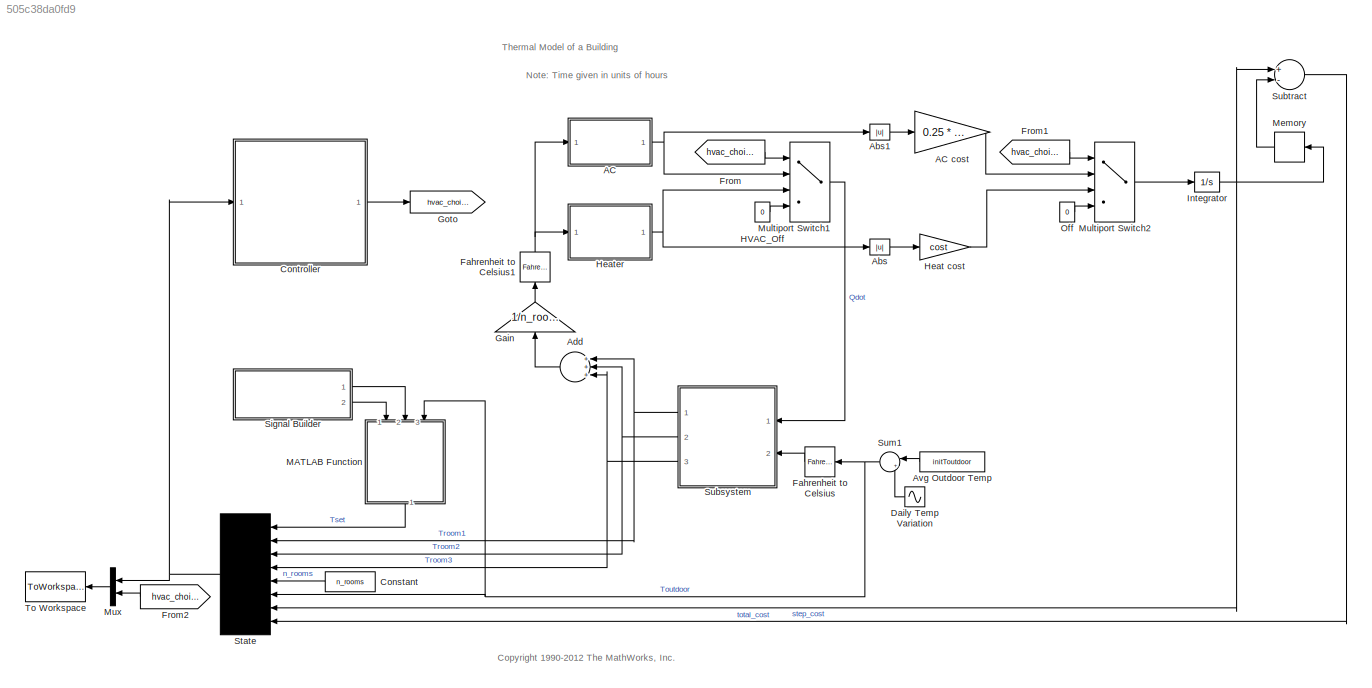
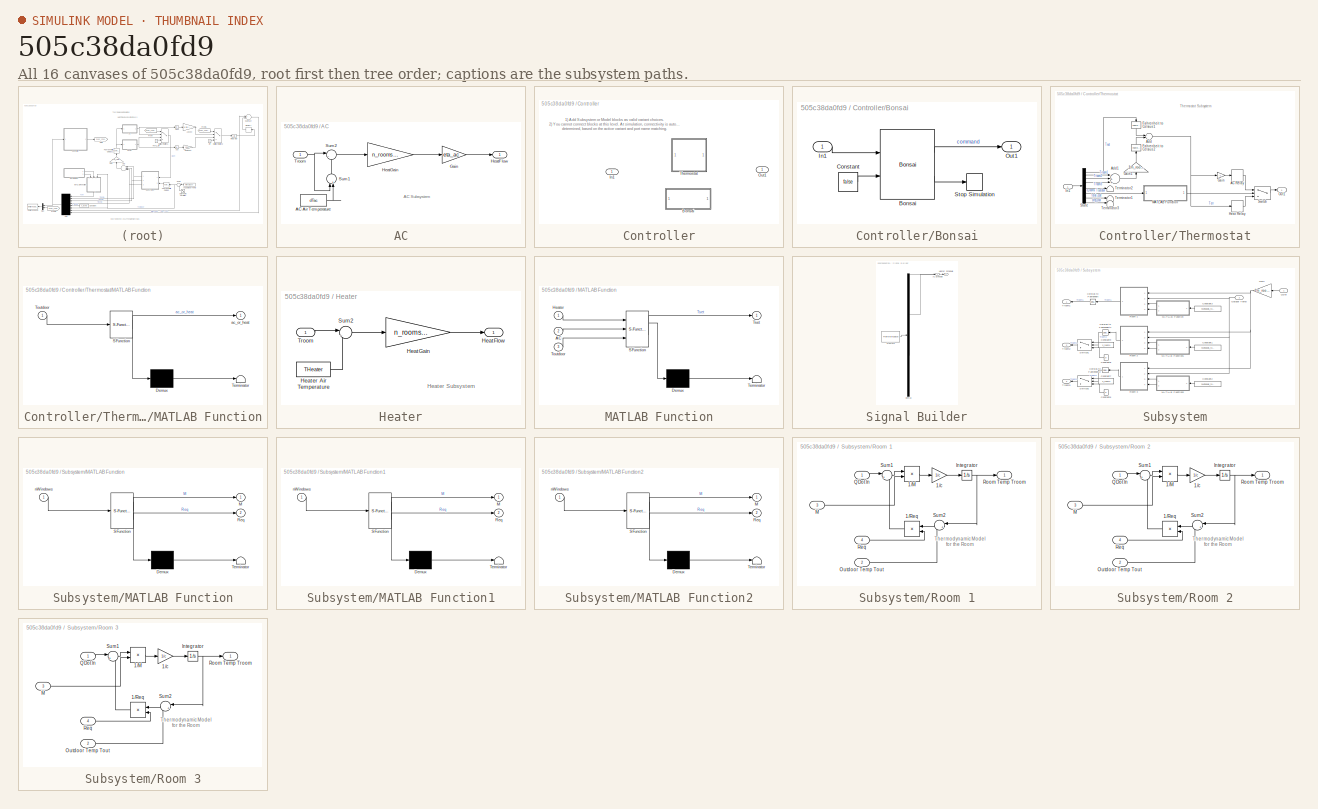
[diagram: thumbnail index - all 16 canvases of the model, root first then tree order]
MODEL slx_505c38da0fd9
KIND model
CONFIG AbsTol = 1e-6
CONFIG EnableMultiTasking = off
CONFIG FixedStep = 1/12
CONFIG MaxStep = auto
CONFIG MinStep = auto
CONFIG RelTol = 1e-3
CONFIG SampleTimeConstraint = Unconstrained
CONFIG Solver = FixedStepAuto
CONFIG SolverName = FixedStepAuto
CONFIG StartTime = 0.0
CONFIG StopTime = 24
BLOCK [SubSystem] AC
  Ports = [1, 1]
  RequestExecContextInheritance = off
BLOCK [Gain] AC cost
  Gain = 0.25 * cost
BLOCK [Constant] AC/AC Air Temperature
  Value = dTac
BLOCK [Gain] AC/Gain
  Gain = eta_ac
  OutDataTypeStr = Inherit: Inherit via internal rule
  ParamDataTypeStr = Inherit: Inherit via internal rule
  SaturateOnIntegerOverflow = off
BLOCK [Outport] AC/HeatFlow
  IconDisplay = Port number
  VectorParamsAs1DForOutWhenUnconnected = off
BLOCK [Gain] AC/HeatGain
  Gain = n_rooms*Mdot*c
  OutDataTypeStr = Inherit: Inherit via internal rule
  ParamDataTypeStr = Inherit: Inherit via internal rule
  SaturateOnIntegerOverflow = off
BLOCK [Sum] AC/Sum1
  IconShape = round
  InputSameDT = off
  Inputs = |+-
  OutDataTypeStr = Inherit: Inherit via internal rule
  Ports = [2, 1]
  SaturateOnIntegerOverflow = off
BLOCK [Sum] AC/Sum2
  IconShape = round
  InputSameDT = off
  Inputs = |-+
  OutDataTypeStr = Inherit: Inherit via internal rule
  Ports = [2, 1]
  SaturateOnIntegerOverflow = off
BLOCK [Inport] AC/Troom
  IconDisplay = Port number
BLOCK [Abs] Abs
  SaturateOnIntegerOverflow = off
BLOCK [Abs] Abs1
  SaturateOnIntegerOverflow = off
BLOCK [Sum] Add
  InputSameDT = off
  Inputs = +++
  OutDataTypeStr = Inherit: Inherit via internal rule
  Ports = [3, 1]
  SaturateOnIntegerOverflow = off
BLOCK [Constant] Avg Outdoor Temp
  Value = initToutdoor
BLOCK [Constant] Constant
  Value = n_rooms
BLOCK [SubSystem] Controller
  LabelModeActiveChoice = Bonsai
  Ports = [1, 1]
  RequestExecContextInheritance = off
  Variant = on
  VariantControlMode = Label
BLOCK [SubSystem] Controller/Bonsai
  Ports = [1, 1]
  RequestExecContextInheritance = off
  VariantControl = Bonsai
BLOCK [Reference] Controller/Bonsai/Bonsai  REF=bonsai_library/Bonsai
  Ports = [2, 2]
  SourceBlock = bonsai_library/Bonsai
  SourceProductName = Bonsai Toolbox
BLOCK [Constant] Controller/Bonsai/Constant
  Value = false
BLOCK [Inport] Controller/Bonsai/In1
  IconDisplay = Port number
BLOCK [Outport] Controller/Bonsai/Out1
  IconDisplay = Port number
BLOCK [Stop] Controller/Bonsai/Stop Simulation
BLOCK [Inport] Controller/In1
  IconDisplay = Port number
BLOCK [Outport] Controller/Out1
  IconDisplay = Port number
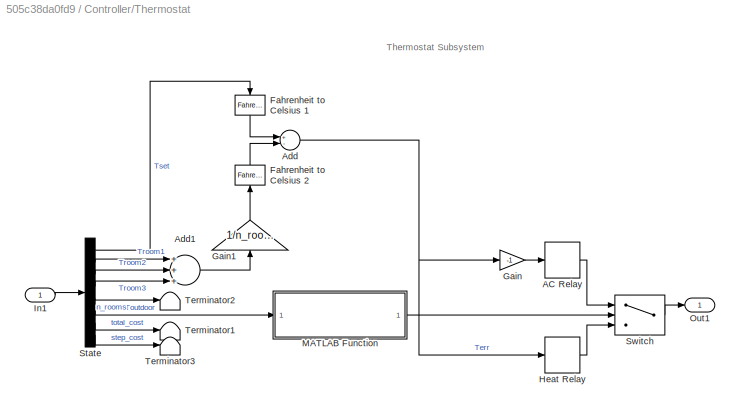
BLOCK [SubSystem] Controller/Thermostat
  Ports = [1, 1]
  RequestExecContextInheritance = off
  VariantControl = Thermostat
BLOCK [Relay] Controller/Thermostat/AC Relay
  OffOutputValue = 3
  OffSwitchValue = -5*(5/9)
  OnSwitchValue = 5*(5/9)
BLOCK [Sum] Controller/Thermostat/Add
  InputSameDT = off
  Inputs = +-
  OutDataTypeStr = Inherit: Inherit via internal rule
  Ports = [2, 1]
  SaturateOnIntegerOverflow = off
BLOCK [Sum] Controller/Thermostat/Add1
  InputSameDT = off
  Inputs = +++
  OutDataTypeStr = Inherit: Inherit via internal rule
  Ports = [3, 1]
  SaturateOnIntegerOverflow = off
BLOCK [Reference] Controller/Thermostat/Fahrenheit to Celsius 1  REF=simulink_extras/Transformations/Fahrenheit
to Celsius
  Ports = [1, 1]
  SourceBlock = simulink_extras/Transformations/Fahrenheit\nto Celsius
  SourceProductName = Simulink Extras
  SourceType = FahrenheitToCelsius
BLOCK [Reference] Controller/Thermostat/Fahrenheit to Celsius 2  REF=simulink_extras/Transformations/Fahrenheit
to Celsius
  Ports = [1, 1]
  SourceBlock = simulink_extras/Transformations/Fahrenheit\nto Celsius
  SourceProductName = Simulink Extras
  SourceType = FahrenheitToCelsius
BLOCK [Gain] Controller/Thermostat/Gain
  Gain = -1
  OutDataTypeStr = Inherit: Inherit via internal rule
  ParamDataTypeStr = Inherit: Inherit via internal rule
  SaturateOnIntegerOverflow = off
BLOCK [Gain] Controller/Thermostat/Gain1
  Gain = 1/n_rooms
  OutDataTypeStr = Inherit: Inherit via internal rule
  ParamDataTypeStr = Inherit: Inherit via internal rule
  SaturateOnIntegerOverflow = off
BLOCK [Relay] Controller/Thermostat/Heat Relay
  OffOutputValue = 3
  OffSwitchValue = -5*(5/9)
  OnOutputValue = 2
  OnSwitchValue = 5*(5/9)
BLOCK [Inport] Controller/Thermostat/In1
  IconDisplay = Port number
BLOCK [SubSystem] Controller/Thermostat/MATLAB Function
  ErrorFcn = Stateflow.Translate.translate
  PermitHierarchicalResolution = ExplicitOnly
  Ports = [1, 1]
  RequestExecContextInheritance = off
  SFBlockType = MATLAB Function
  TreatAsAtomicUnit = on
BLOCK [Demux] Controller/Thermostat/MATLAB Function/ Demux 
  DisplayOption = bar
  Outputs = 1
  Ports = [1, 1]
BLOCK [S-Function] Controller/Thermostat/MATLAB Function/ SFunction 
  EnableBusSupport = on
  FunctionName = sf_sfun
  PortCounts = [1 2]
  Ports = [1, 2]
  SFcnIsStateOwnerBlock = off
  SFunctionDeploymentMode = off
  Tag = Stateflow S-Function 2
BLOCK [Terminator] Controller/Thermostat/MATLAB Function/ Terminator 
BLOCK [Inport] Controller/Thermostat/MATLAB Function/Toutdoor
  IconDisplay = Port number
BLOCK [Outport] Controller/Thermostat/MATLAB Function/ac_or_heat
  IconDisplay = Port number
BLOCK [Outport] Controller/Thermostat/Out1
  IconDisplay = Port number
BLOCK [Demux] Controller/Thermostat/State
  DisplayOption = bar
  Outputs = 8
  Ports = [1, 8]
BLOCK [Switch] Controller/Thermostat/Switch
  Criteria = u2 > Threshold
  InputSameDT = off
  SaturateOnIntegerOverflow = off
BLOCK [Terminator] Controller/Thermostat/Terminator1
BLOCK [Terminator] Controller/Thermostat/Terminator2
BLOCK [Terminator] Controller/Thermostat/Terminator3
BLOCK [Sin] Daily Temp Variation
  Amplitude = 15
  Frequency = 2*pi/24
  Ports = [0, 1]
  SampleTime = 0
BLOCK [Reference] Fahrenheit to Celsius  REF=simulink_extras/Transformations/Fahrenheit
to Celsius
  Ports = [1, 1]
  SourceBlock = simulink_extras/Transformations/Fahrenheit\nto Celsius
  SourceProductName = Simulink Extras
  SourceType = FahrenheitToCelsius
BLOCK [Reference] Fahrenheit to Celsius1  REF=simulink_extras/Transformations/Fahrenheit
to Celsius
  Ports = [1, 1]
  SourceBlock = simulink_extras/Transformations/Fahrenheit\nto Celsius
  SourceProductBaseCode = SL
  SourceType = FahrenheitToCelsius
BLOCK [From] From
  GotoTag = hvac_choice
BLOCK [From] From1
  GotoTag = hvac_choice
BLOCK [From] From2
  GotoTag = hvac_choice
BLOCK [Gain] Gain
  Gain = 1/n_rooms
  OutDataTypeStr = Inherit: Inherit via internal rule
  ParamDataTypeStr = Inherit: Inherit via internal rule
  SaturateOnIntegerOverflow = off
BLOCK [Goto] Goto
  GotoTag = hvac_choice
BLOCK [Constant] HVAC_Off
  Value = 0
BLOCK [Gain] Heat cost 
  Gain = cost
BLOCK [SubSystem] Heater
  Ports = [1, 1]
  RequestExecContextInheritance = off
BLOCK [Outport] Heater/HeatFlow
  IconDisplay = Port number
  VectorParamsAs1DForOutWhenUnconnected = off
BLOCK [Gain] Heater/HeatGain
  Gain = n_rooms*Mdot*c
  OutDataTypeStr = Inherit: Inherit via internal rule
  ParamDataTypeStr = Inherit: Inherit via internal rule
  SaturateOnIntegerOverflow = off
BLOCK [Constant] Heater/Heater Air Temperature
  Value = THeater
BLOCK [Sum] Heater/Sum2
  IconShape = round
  InputSameDT = off
  Inputs = |-+
  OutDataTypeStr = Inherit: Inherit via internal rule
  Ports = [2, 1]
  SaturateOnIntegerOverflow = off
BLOCK [Inport] Heater/Troom
  IconDisplay = Port number
BLOCK [Integrator] Integrator
  Ports = [1, 1]
BLOCK [SubSystem] MATLAB Function
  ErrorFcn = Stateflow.Translate.translate
  PermitHierarchicalResolution = ExplicitOnly
  Ports = [3, 1]
  RequestExecContextInheritance = off
  SFBlockType = MATLAB Function
  TreatAsAtomicUnit = on
BLOCK [Demux] MATLAB Function/ Demux 
  DisplayOption = bar
  Outputs = 1
  Ports = [1, 1]
BLOCK [S-Function] MATLAB Function/ SFunction 
  EnableBusSupport = on
  FunctionName = sf_sfun
  PortCounts = [3 2]
  Ports = [3, 2]
  SFcnIsStateOwnerBlock = off
  SFunctionDeploymentMode = off
  Tag = Stateflow S-Function 1
BLOCK [Terminator] MATLAB Function/ Terminator 
BLOCK [Inport] MATLAB Function/AC
  IconDisplay = Port number
  Port = 2
BLOCK [Inport] MATLAB Function/Heater
  IconDisplay = Port number
BLOCK [Inport] MATLAB Function/Toutdoor
  IconDisplay = Port number
  Port = 3
BLOCK [Outport] MATLAB Function/Tset
  IconDisplay = Port number
BLOCK [Memory] Memory
BLOCK [MultiPortSwitch] Multiport Switch1
  DiagnosticForDefault = None
  InputSameDT = off
  Ports = [4, 1]
  SaturateOnIntegerOverflow = off
BLOCK [MultiPortSwitch] Multiport Switch2
  DiagnosticForDefault = None
  InputSameDT = off
  Ports = [4, 1]
  SaturateOnIntegerOverflow = off
BLOCK [Mux] Mux
  DisplayOption = bar
  Inputs = 2
  Ports = [2, 1]
BLOCK [Constant] Off
  Value = 0
BLOCK [SubSystem] Signal Builder
  ClipboardFcn = sigbuilder_block('clipboard');
  CloseFcn = sigbuilder_block('close');
  ContinueFcn = sigbuilder_block('continue');
  CopyFcn = sigbuilder_block('copy');
  DeleteFcn = sigbuilder_block('delete');
  LoadFcn = sigbuilder_block('load');
  MaskHideContents = on
  ModelCloseFcn = sigbuilder_block('modelClose');
  NameChangeFcn = sigbuilder_block('namechange');
  OpenFcn = sigbuilder_block('open',[437.6 199.2 550.4 400 ]);
  PauseFcn = sigbuilder_block('pause');
  Ports = [0, 2]
  PreSaveFcn = sigbuilder_block('preSave');
  RequestExecContextInheritance = off
  StartFcn = sigbuilder_block('start');
  StopFcn = sigbuilder_block('stop');
  Tag = STV Subsys
BLOCK [Outport] Signal Builder/AC Schedule
  IconDisplay = Port number
  Tag = STV Outport
BLOCK [Demux] Signal Builder/Demux
  Outputs = 2
  Ports = [1, 2]
  Tag = STV Demux
BLOCK [FromWorkspace] Signal Builder/FromWs
  SampleTime = 0
  Tag = STV FromWs
  VariableName = tuvar
  ZeroCross = on
BLOCK [Outport] Signal Builder/Heater Schedule
  IconDisplay = Port number
  Port = 2
  Tag = STV Outport
BLOCK [Mux] State
  DisplayOption = signals
  Inputs = 8
  Ports = [8, 1]
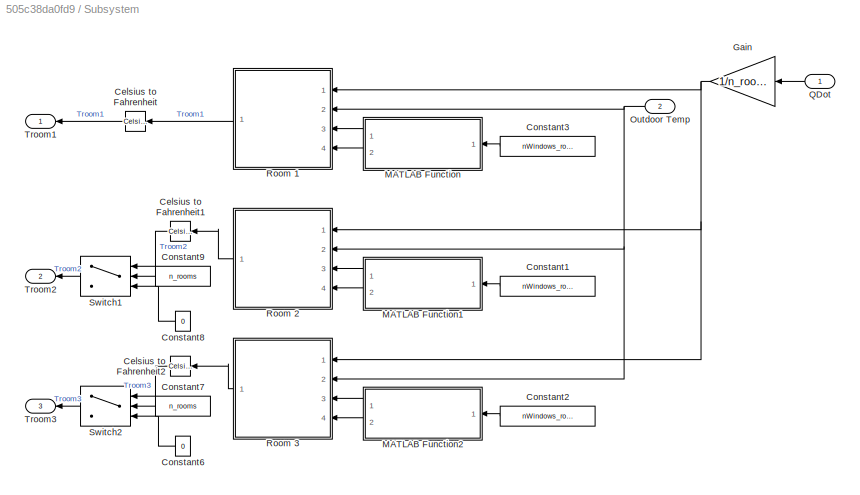
BLOCK [SubSystem] Subsystem
  Ports = [2, 3]
  RequestExecContextInheritance = off
BLOCK [Reference] Subsystem/Celsius to Fahrenheit  REF=simulink_extras/Transformations/Celsius to
Fahrenheit
  Ports = [1, 1]
  SourceBlock = simulink_extras/Transformations/Celsius to\nFahrenheit
  SourceProductName = Simulink Extras
  SourceType = CelsiusToFahrenheit
BLOCK [Reference] Subsystem/Celsius to Fahrenheit1  REF=simulink_extras/Transformations/Celsius to
Fahrenheit
  Ports = [1, 1]
  SourceBlock = simulink_extras/Transformations/Celsius to\nFahrenheit
  SourceProductName = Simulink Extras
  SourceType = CelsiusToFahrenheit
BLOCK [Reference] Subsystem/Celsius to Fahrenheit2  REF=simulink_extras/Transformations/Celsius to
Fahrenheit
  Ports = [1, 1]
  SourceBlock = simulink_extras/Transformations/Celsius to\nFahrenheit
  SourceProductName = Simulink Extras
  SourceType = CelsiusToFahrenheit
BLOCK [Constant] Subsystem/Constant1
  Value = nWindows_room2
  VectorParams1D = off
BLOCK [Constant] Subsystem/Constant2
  Value = nWindows_room3
  VectorParams1D = off
BLOCK [Constant] Subsystem/Constant3
  Value = nWindows_room1
  VectorParams1D = off
BLOCK [Constant] Subsystem/Constant6
  Value = 0
BLOCK [Constant] Subsystem/Constant7
  Value = n_rooms
BLOCK [Constant] Subsystem/Constant8
  Value = 0
BLOCK [Constant] Subsystem/Constant9
  Value = n_rooms
BLOCK [Gain] Subsystem/Gain
  Gain = 1/n_rooms
  OutDataTypeStr = Inherit: Inherit via internal rule
  ParamDataTypeStr = Inherit: Inherit via internal rule
  SaturateOnIntegerOverflow = off
BLOCK [SubSystem] Subsystem/MATLAB Function
  ErrorFcn = Stateflow.Translate.translate
  PermitHierarchicalResolution = ExplicitOnly
  Ports = [1, 2]
  RequestExecContextInheritance = off
  SFBlockType = MATLAB Function
  TreatAsAtomicUnit = on
BLOCK [Demux] Subsystem/MATLAB Function/ Demux 
  DisplayOption = bar
  Outputs = 1
  Ports = [1, 1]
BLOCK [S-Function] Subsystem/MATLAB Function/ SFunction 
  EnableBusSupport = on
  FunctionName = sf_sfun
  PortCounts = [1 3]
  Ports = [1, 3]
  SFcnIsStateOwnerBlock = off
  SFunctionDeploymentMode = off
  Tag = Stateflow S-Function 3
BLOCK [Terminator] Subsystem/MATLAB Function/ Terminator 
BLOCK [Outport] Subsystem/MATLAB Function/M
  IconDisplay = Port number
BLOCK [Outport] Subsystem/MATLAB Function/Req
  IconDisplay = Port number
  Port = 2
BLOCK [Inport] Subsystem/MATLAB Function/nWindows
  IconDisplay = Port number
BLOCK [SubSystem] Subsystem/MATLAB Function1
  ErrorFcn = Stateflow.Translate.translate
  PermitHierarchicalResolution = ExplicitOnly
  Ports = [1, 2]
  RequestExecContextInheritance = off
  SFBlockType = MATLAB Function
  TreatAsAtomicUnit = on
BLOCK [Demux] Subsystem/MATLAB Function1/ Demux 
  DisplayOption = bar
  Outputs = 1
  Ports = [1, 1]
BLOCK [S-Function] Subsystem/MATLAB Function1/ SFunction 
  EnableBusSupport = on
  FunctionName = sf_sfun
  PortCounts = [1 3]
  Ports = [1, 3]
  SFcnIsStateOwnerBlock = off
  SFunctionDeploymentMode = off
  Tag = Stateflow S-Function 4
BLOCK [Terminator] Subsystem/MATLAB Function1/ Terminator 
BLOCK [Outport] Subsystem/MATLAB Function1/M
  IconDisplay = Port number
BLOCK [Outport] Subsystem/MATLAB Function1/Req
  IconDisplay = Port number
  Port = 2
BLOCK [Inport] Subsystem/MATLAB Function1/nWindows
  IconDisplay = Port number
BLOCK [SubSystem] Subsystem/MATLAB Function2
  ErrorFcn = Stateflow.Translate.translate
  PermitHierarchicalResolution = ExplicitOnly
  Ports = [1, 2]
  RequestExecContextInheritance = off
  SFBlockType = MATLAB Function
  TreatAsAtomicUnit = on
BLOCK [Demux] Subsystem/MATLAB Function2/ Demux 
  DisplayOption = bar
  Outputs = 1
  Ports = [1, 1]
BLOCK [S-Function] Subsystem/MATLAB Function2/ SFunction 
  EnableBusSupport = on
  FunctionName = sf_sfun
  PortCounts = [1 3]
  Ports = [1, 3]
  SFcnIsStateOwnerBlock = off
  SFunctionDeploymentMode = off
  Tag = Stateflow S-Function 5
BLOCK [Terminator] Subsystem/MATLAB Function2/ Terminator 
BLOCK [Outport] Subsystem/MATLAB Function2/M
  IconDisplay = Port number
BLOCK [Outport] Subsystem/MATLAB Function2/Req
  IconDisplay = Port number
  Port = 2
BLOCK [Inport] Subsystem/MATLAB Function2/nWindows
  IconDisplay = Port number
BLOCK [Inport] Subsystem/Outdoor Temp
  IconDisplay = Port number
  Port = 2
BLOCK [Inport] Subsystem/QDot
  IconDisplay = Port number
BLOCK [SubSystem] Subsystem/Room 1
  Ports = [4, 1]
  RequestExecContextInheritance = off
BLOCK [Product] Subsystem/Room 1/1//M
  InputSameDT = off
  Inputs = */
  OutDataTypeStr = Inherit: Inherit via internal rule
  Ports = [2, 1]
  RndMeth = Floor
  SaturateOnIntegerOverflow = off
BLOCK [Product] Subsystem/Room 1/1//Req
  InputSameDT = off
  Inputs = */
  OutDataTypeStr = Inherit: Inherit via internal rule
  Ports = [2, 1]
  RndMeth = Floor
  SaturateOnIntegerOverflow = off
BLOCK [Gain] Subsystem/Room 1/1//c
  Gain = 1/c
BLOCK [Integrator] Subsystem/Room 1/Integrator
  InitialCondition = TinIC
  Ports = [1, 1]
BLOCK [Inport] Subsystem/Room 1/M
  IconDisplay = Port number
  Port = 3
BLOCK [Inport] Subsystem/Room 1/Outdoor Temp Tout
  IconDisplay = Port number
  Port = 2
BLOCK [Inport] Subsystem/Room 1/QDot In
  IconDisplay = Port number
BLOCK [Inport] Subsystem/Room 1/Req
  IconDisplay = Port number
  Port = 4
BLOCK [Outport] Subsystem/Room 1/Room Temp Troom
  IconDisplay = Port number
  InitialOutput = 0
  VectorParamsAs1DForOutWhenUnconnected = off
BLOCK [Sum] Subsystem/Room 1/Sum1
  IconShape = round
  Inputs = |+-
  Ports = [2, 1]
BLOCK [Sum] Subsystem/Room 1/Sum2
  IconShape = round
  Inputs = |+-
  Ports = [2, 1]
BLOCK [SubSystem] Subsystem/Room 2
  Ports = [4, 1]
  RequestExecContextInheritance = off
BLOCK [Product] Subsystem/Room 2/1//M
  InputSameDT = off
  Inputs = */
  OutDataTypeStr = Inherit: Inherit via internal rule
  Ports = [2, 1]
  RndMeth = Floor
  SaturateOnIntegerOverflow = off
BLOCK [Product] Subsystem/Room 2/1//Req
  InputSameDT = off
  Inputs = */
  OutDataTypeStr = Inherit: Inherit via internal rule
  Ports = [2, 1]
  RndMeth = Floor
  SaturateOnIntegerOverflow = off
BLOCK [Gain] Subsystem/Room 2/1//c
  Gain = 1/c
BLOCK [Integrator] Subsystem/Room 2/Integrator
  InitialCondition = TinIC
  Ports = [1, 1]
BLOCK [Inport] Subsystem/Room 2/M
  IconDisplay = Port number
  Port = 3
BLOCK [Inport] Subsystem/Room 2/Outdoor Temp Tout
  IconDisplay = Port number
  Port = 2
BLOCK [Inport] Subsystem/Room 2/QDot In
  IconDisplay = Port number
BLOCK [Inport] Subsystem/Room 2/Req
  IconDisplay = Port number
  Port = 4
BLOCK [Outport] Subsystem/Room 2/Room Temp Troom
  IconDisplay = Port number
  InitialOutput = 0
  VectorParamsAs1DForOutWhenUnconnected = off
BLOCK [Sum] Subsystem/Room 2/Sum1
  IconShape = round
  Inputs = |+-
  Ports = [2, 1]
BLOCK [Sum] Subsystem/Room 2/Sum2
  IconShape = round
  Inputs = |+-
  Ports = [2, 1]
BLOCK [SubSystem] Subsystem/Room 3
  Ports = [4, 1]
  RequestExecContextInheritance = off
BLOCK [Product] Subsystem/Room 3/1//M
  InputSameDT = off
  Inputs = */
  OutDataTypeStr = Inherit: Inherit via internal rule
  Ports = [2, 1]
  RndMeth = Floor
  SaturateOnIntegerOverflow = off
BLOCK [Product] Subsystem/Room 3/1//Req
  InputSameDT = off
  Inputs = */
  OutDataTypeStr = Inherit: Inherit via internal rule
  Ports = [2, 1]
  RndMeth = Floor
  SaturateOnIntegerOverflow = off
BLOCK [Gain] Subsystem/Room 3/1//c
  Gain = 1/c
BLOCK [Integrator] Subsystem/Room 3/Integrator
  InitialCondition = TinIC
  Ports = [1, 1]
BLOCK [Inport] Subsystem/Room 3/M
  IconDisplay = Port number
  Port = 3
BLOCK [Inport] Subsystem/Room 3/Outdoor Temp Tout
  IconDisplay = Port number
  Port = 2
BLOCK [Inport] Subsystem/Room 3/QDot In
  IconDisplay = Port number
BLOCK [Inport] Subsystem/Room 3/Req
  IconDisplay = Port number
  Port = 4
BLOCK [Outport] Subsystem/Room 3/Room Temp Troom
  IconDisplay = Port number
  InitialOutput = 0
  VectorParamsAs1DForOutWhenUnconnected = off
BLOCK [Sum] Subsystem/Room 3/Sum1
  IconShape = round
  Inputs = |+-
  Ports = [2, 1]
BLOCK [Sum] Subsystem/Room 3/Sum2
  IconShape = round
  Inputs = |+-
  Ports = [2, 1]
BLOCK [Switch] Subsystem/Switch1
  InputSameDT = off
  SaturateOnIntegerOverflow = off
  Threshold = 2
BLOCK [Switch] Subsystem/Switch2
  InputSameDT = off
  SaturateOnIntegerOverflow = off
  Threshold = 3
BLOCK [Outport] Subsystem/Troom1
  IconDisplay = Port number
BLOCK [Outport] Subsystem/Troom2
  IconDisplay = Port number
  Port = 2
BLOCK [Outport] Subsystem/Troom3
  IconDisplay = Port number
  Port = 3
BLOCK [Sum] Subtract
  InputSameDT = off
  Inputs = +-
  OutDataTypeStr = Inherit: Inherit via internal rule
  Ports = [2, 1]
  SaturateOnIntegerOverflow = off
BLOCK [Sum] Sum1
  IconShape = round
  Inputs = |++
  Ports = [2, 1]
BLOCK [ToWorkspace] To Workspace
  FixptAsFi = on
  MaxDataPoints = inf
  Ports = [1]
  SampleTime = -1
  VariableName = simout
ANNOTATION (root): <copyright redacted>
ANNOTATION (root): Note: Time given in units of hours
ANNOTATION (root): Thermal Model of a Building
ANNOTATION AC: AC Subsystem
ANNOTATION Controller: 1) Add Subsystem or Model blocks as valid variant choices. 2) You cannot connect blocks at this level. At simulation, connectivity is automatically determined, based on the active variant and port name matching.
ANNOTATION Controller/Thermostat: Thermostat Subsystem
ANNOTATION Heater: Heater Subsystem
ANNOTATION Subsystem/Room 1: Thermodynamic Model for the Room
ANNOTATION Subsystem/Room 2: Thermodynamic Model for the Room
ANNOTATION Subsystem/Room 3: Thermodynamic Model for the Room
LINE AC cost:1 -> Multiport Switch2:2
LINE AC/AC Air Temperature:1 -> AC/Sum1:2
LINE AC/Gain:1 -> AC/HeatFlow:1
LINE AC/HeatGain:1 -> AC/Gain:1
LINE AC/Sum1:1 -> AC/Sum2:2
LINE AC/Sum2:1 -> AC/HeatGain:1
NET AC/Troom:1 -> AC/Sum1:1, AC/Sum2:1
NET AC:1 -> Abs1:1, Multiport Switch1:2
LINE Abs1:1 -> AC cost:1
LINE Abs:1 -> Heat cost :1
LINE Add:1 -> Gain:1
LINE Avg Outdoor Temp:1 -> Sum1:1
LINE Constant:1 -> State:5
LINE Controller/Bonsai/Bonsai:1 -> Controller/Bonsai/Out1:1
LINE Controller/Bonsai/Bonsai:2 -> Controller/Bonsai/Stop Simulation:1
LINE Controller/Bonsai/Constant:1 -> Controller/Bonsai/Bonsai:2
LINE Controller/Bonsai/In1:1 -> Controller/Bonsai/Bonsai:1
LINE Controller/Thermostat/AC Relay:1 -> Controller/Thermostat/Switch:1
LINE Controller/Thermostat/Add1:1 -> Controller/Thermostat/Gain1:1
NET Controller/Thermostat/Add:1 -> Controller/Thermostat/Gain:1, Controller/Thermostat/Heat Relay:1
LINE Controller/Thermostat/Fahrenheit to Celsius 1:1 -> Controller/Thermostat/Add:1
LINE Controller/Thermostat/Fahrenheit to Celsius 2:1 -> Controller/Thermostat/Add:2
LINE Controller/Thermostat/Gain1:1 -> Controller/Thermostat/Fahrenheit to Celsius 2:1
LINE Controller/Thermostat/Gain:1 -> Controller/Thermostat/AC Relay:1
LINE Controller/Thermostat/Heat Relay:1 -> Controller/Thermostat/Switch:3
LINE Controller/Thermostat/In1:1 -> Controller/Thermostat/State:1
LINE Controller/Thermostat/MATLAB Function:1 -> Controller/Thermostat/Switch:2
LINE Controller/Thermostat/State:1 -> Controller/Thermostat/Fahrenheit to Celsius 1:1
LINE Controller/Thermostat/State:2 -> Controller/Thermostat/Add1:1
LINE Controller/Thermostat/State:3 -> Controller/Thermostat/Add1:2
LINE Controller/Thermostat/State:4 -> Controller/Thermostat/Add1:3
LINE Controller/Thermostat/State:5 -> Controller/Thermostat/Terminator2:1
LINE Controller/Thermostat/State:6 -> Controller/Thermostat/MATLAB Function:1
LINE Controller/Thermostat/State:7 -> Controller/Thermostat/Terminator1:1
LINE Controller/Thermostat/State:8 -> Controller/Thermostat/Terminator3:1
LINE Controller/Thermostat/Switch:1 -> Controller/Thermostat/Out1:1
LINE Controller:1 -> Goto:1
LINE Daily Temp Variation:1 -> Sum1:2
NET Fahrenheit to Celsius1:1 -> AC:1, Heater:1
LINE Fahrenheit to Celsius:1 -> Subsystem:2
LINE From1:1 -> Multiport Switch2:1
LINE From2:1 -> Mux:2
LINE From:1 -> Multiport Switch1:1
LINE Gain:1 -> Fahrenheit to Celsius1:1
LINE HVAC_Off:1 -> Multiport Switch1:4
LINE Heat cost :1 -> Multiport Switch2:3
LINE Heater/HeatGain:1 -> Heater/HeatFlow:1
LINE Heater/Heater Air Temperature:1 -> Heater/Sum2:2
LINE Heater/Sum2:1 -> Heater/HeatGain:1
LINE Heater/Troom:1 -> Heater/Sum2:1
NET Heater:1 -> Abs:1, Multiport Switch1:3
NET Integrator:1 -> Memory:1, State:7, Subtract:1
LINE MATLAB Function:1 -> State:1
LINE Memory:1 -> Subtract:2
LINE Multiport Switch1:1 -> Subsystem:1
LINE Multiport Switch2:1 -> Integrator:1
LINE Mux:1 -> To Workspace:1
LINE Off:1 -> Multiport Switch2:4
LINE Signal Builder:1 -> MATLAB Function:2
LINE Signal Builder:2 -> MATLAB Function:1
NET State:1 -> Controller:1, Mux:1
LINE Subsystem/Celsius to Fahrenheit1:1 -> Subsystem/Switch1:1
LINE Subsystem/Celsius to Fahrenheit2:1 -> Subsystem/Switch2:1
LINE Subsystem/Celsius to Fahrenheit:1 -> Subsystem/Troom1:1
LINE Subsystem/Constant1:1 -> Subsystem/MATLAB Function1:1
LINE Subsystem/Constant2:1 -> Subsystem/MATLAB Function2:1
LINE Subsystem/Constant3:1 -> Subsystem/MATLAB Function:1
LINE Subsystem/Constant6:1 -> Subsystem/Switch2:3
LINE Subsystem/Constant7:1 -> Subsystem/Switch2:2
LINE Subsystem/Constant8:1 -> Subsystem/Switch1:3
LINE Subsystem/Constant9:1 -> Subsystem/Switch1:2
NET Subsystem/Gain:1 -> Subsystem/Room 1:1, Subsystem/Room 2:1, Subsystem/Room 3:1
LINE Subsystem/MATLAB Function1:1 -> Subsystem/Room 2:3
LINE Subsystem/MATLAB Function1:2 -> Subsystem/Room 2:4
LINE Subsystem/MATLAB Function2:1 -> Subsystem/Room 3:3
LINE Subsystem/MATLAB Function2:2 -> Subsystem/Room 3:4
LINE Subsystem/MATLAB Function:1 -> Subsystem/Room 1:3
LINE Subsystem/MATLAB Function:2 -> Subsystem/Room 1:4
NET Subsystem/Outdoor Temp:1 -> Subsystem/Room 1:2, Subsystem/Room 2:2, Subsystem/Room 3:2
LINE Subsystem/QDot:1 -> Subsystem/Gain:1
LINE Subsystem/Room 1/1//M:1 -> Subsystem/Room 1/1//c:1
LINE Subsystem/Room 1/1//Req:1 -> Subsystem/Room 1/Sum1:2
LINE Subsystem/Room 1/1//c:1 -> Subsystem/Room 1/Integrator:1
NET Subsystem/Room 1/Integrator:1 -> Subsystem/Room 1/Room Temp Troom:1, Subsystem/Room 1/Sum2:1
LINE Subsystem/Room 1/M:1 -> Subsystem/Room 1/1//M:2
LINE Subsystem/Room 1/Outdoor Temp Tout:1 -> Subsystem/Room 1/Sum2:2
LINE Subsystem/Room 1/QDot In:1 -> Subsystem/Room 1/Sum1:1
LINE Subsystem/Room 1/Req:1 -> Subsystem/Room 1/1//Req:2
LINE Subsystem/Room 1/Sum1:1 -> Subsystem/Room 1/1//M:1
LINE Subsystem/Room 1/Sum2:1 -> Subsystem/Room 1/1//Req:1
LINE Subsystem/Room 1:1 -> Subsystem/Celsius to Fahrenheit:1
LINE Subsystem/Room 2/1//M:1 -> Subsystem/Room 2/1//c:1
LINE Subsystem/Room 2/1//Req:1 -> Subsystem/Room 2/Sum1:2
LINE Subsystem/Room 2/1//c:1 -> Subsystem/Room 2/Integrator:1
NET Subsystem/Room 2/Integrator:1 -> Subsystem/Room 2/Room Temp Troom:1, Subsystem/Room 2/Sum2:1
LINE Subsystem/Room 2/M:1 -> Subsystem/Room 2/1//M:2
LINE Subsystem/Room 2/Outdoor Temp Tout:1 -> Subsystem/Room 2/Sum2:2
LINE Subsystem/Room 2/QDot In:1 -> Subsystem/Room 2/Sum1:1
LINE Subsystem/Room 2/Req:1 -> Subsystem/Room 2/1//Req:2
LINE Subsystem/Room 2/Sum1:1 -> Subsystem/Room 2/1//M:1
LINE Subsystem/Room 2/Sum2:1 -> Subsystem/Room 2/1//Req:1
LINE Subsystem/Room 2:1 -> Subsystem/Celsius to Fahrenheit1:1
LINE Subsystem/Room 3/1//M:1 -> Subsystem/Room 3/1//c:1
LINE Subsystem/Room 3/1//Req:1 -> Subsystem/Room 3/Sum1:2
LINE Subsystem/Room 3/1//c:1 -> Subsystem/Room 3/Integrator:1
NET Subsystem/Room 3/Integrator:1 -> Subsystem/Room 3/Room Temp Troom:1, Subsystem/Room 3/Sum2:1
LINE Subsystem/Room 3/M:1 -> Subsystem/Room 3/1//M:2
LINE Subsystem/Room 3/Outdoor Temp Tout:1 -> Subsystem/Room 3/Sum2:2
LINE Subsystem/Room 3/QDot In:1 -> Subsystem/Room 3/Sum1:1
LINE Subsystem/Room 3/Req:1 -> Subsystem/Room 3/1//Req:2
LINE Subsystem/Room 3/Sum1:1 -> Subsystem/Room 3/1//M:1
LINE Subsystem/Room 3/Sum2:1 -> Subsystem/Room 3/1//Req:1
LINE Subsystem/Room 3:1 -> Subsystem/Celsius to Fahrenheit2:1
LINE Subsystem/Switch1:1 -> Subsystem/Troom2:1
LINE Subsystem/Switch2:1 -> Subsystem/Troom3:1
NET Subsystem:1 -> Add:1, State:2
NET Subsystem:2 -> Add:2, State:3
NET Subsystem:3 -> Add:3, State:4
LINE Subtract:1 -> State:8
NET Sum1:1 -> Fahrenheit to Celsius:1, MATLAB Function:3, State:6
note: NET lines group one-source signal fan-out (src -> all destinations, sorted); 1:1 wires keep LINE
CHART MATLAB Function states=1 transitions=1
  STATE_LABEL 'eML_blk_kernel()'
  STATE_LABEL 'SCRIPT:\nfunction Tset = choose_Tset(Heater, AC, Toutdoor)\n\nif Toutdoor > 73\n    Tset = AC;\nelse\n    Tset = Heater;\nend\n'
CHART Controller/Thermostat/MATLAB Function states=1 transitions=1
  STATE_LABEL 'eML_blk_kernel()'
  STATE_LABEL 'SCRIPT:\nfunction ac_or_heat = fcn(Toutdoor)\n\n    if Toutdoor > 73\n        ac_or_heat = 1; % AC\n    else\n        ac_or_heat = -1; % Heat\n    end'
CHART Subsystem/MATLAB Function states=1 transitions=1
  STATE_LABEL 'eML_blk_kernel()'
  STATE_LABEL 'SCRIPT:\nfunction [M, Req] = room_params(nWindows)\n    %<copyright redacted>\n\n    % -------------------------------\n    % Define the room geometry\n    % -------------------------------\n    % convert radians to degrees\n    r2d = 180/pi;\n    % Room length = 30 m\n    lenRoom = 30;\n    % Room width = 10 m\n    widRoom = 10;\n    % Room height = 4 m\n    htRoom = 4;\n    % Roof pitch = 40...<+1337ch>'
CHART Subsystem/MATLAB Function1 states=1 transitions=1
  STATE_LABEL 'eML_blk_kernel()'
  STATE_LABEL 'SCRIPT:\nfunction [M, Req] = room_params(nWindows)\n    % <copyright redacted>\n    % -------------------------------\n    % Define the room geometry\n    % -------------------------------\n    % convert radians to degrees\n    r2d = 180/pi;\n    % Room length = 30 m\n    lenRoom = 30;\n    % Room width = 10 m\n    widRoom = 10;\n    % Room height = 4 m\n    htRoom = 4;\n    % Roof pitch = 40...<+1337ch>'
CHART Subsystem/MATLAB Function2 states=1 transitions=1
  STATE_LABEL 'eML_blk_kernel()'
  STATE_LABEL 'SCRIPT:\nfunction [M, Req] = room_params(nWindows)\n    % <copyright redacted>\n    % -------------------------------\n    % Define the room geometry\n    % -------------------------------\n    % convert radians to degrees\n    r2d = 180/pi;\n    % Room length = 30 m\n    lenRoom = 30;\n    % Room width = 10 m\n    widRoom = 10;\n    % Room height = 4 m\n    htRoom = 4;\n    % Roof pitch = 40...<+1337ch>'
